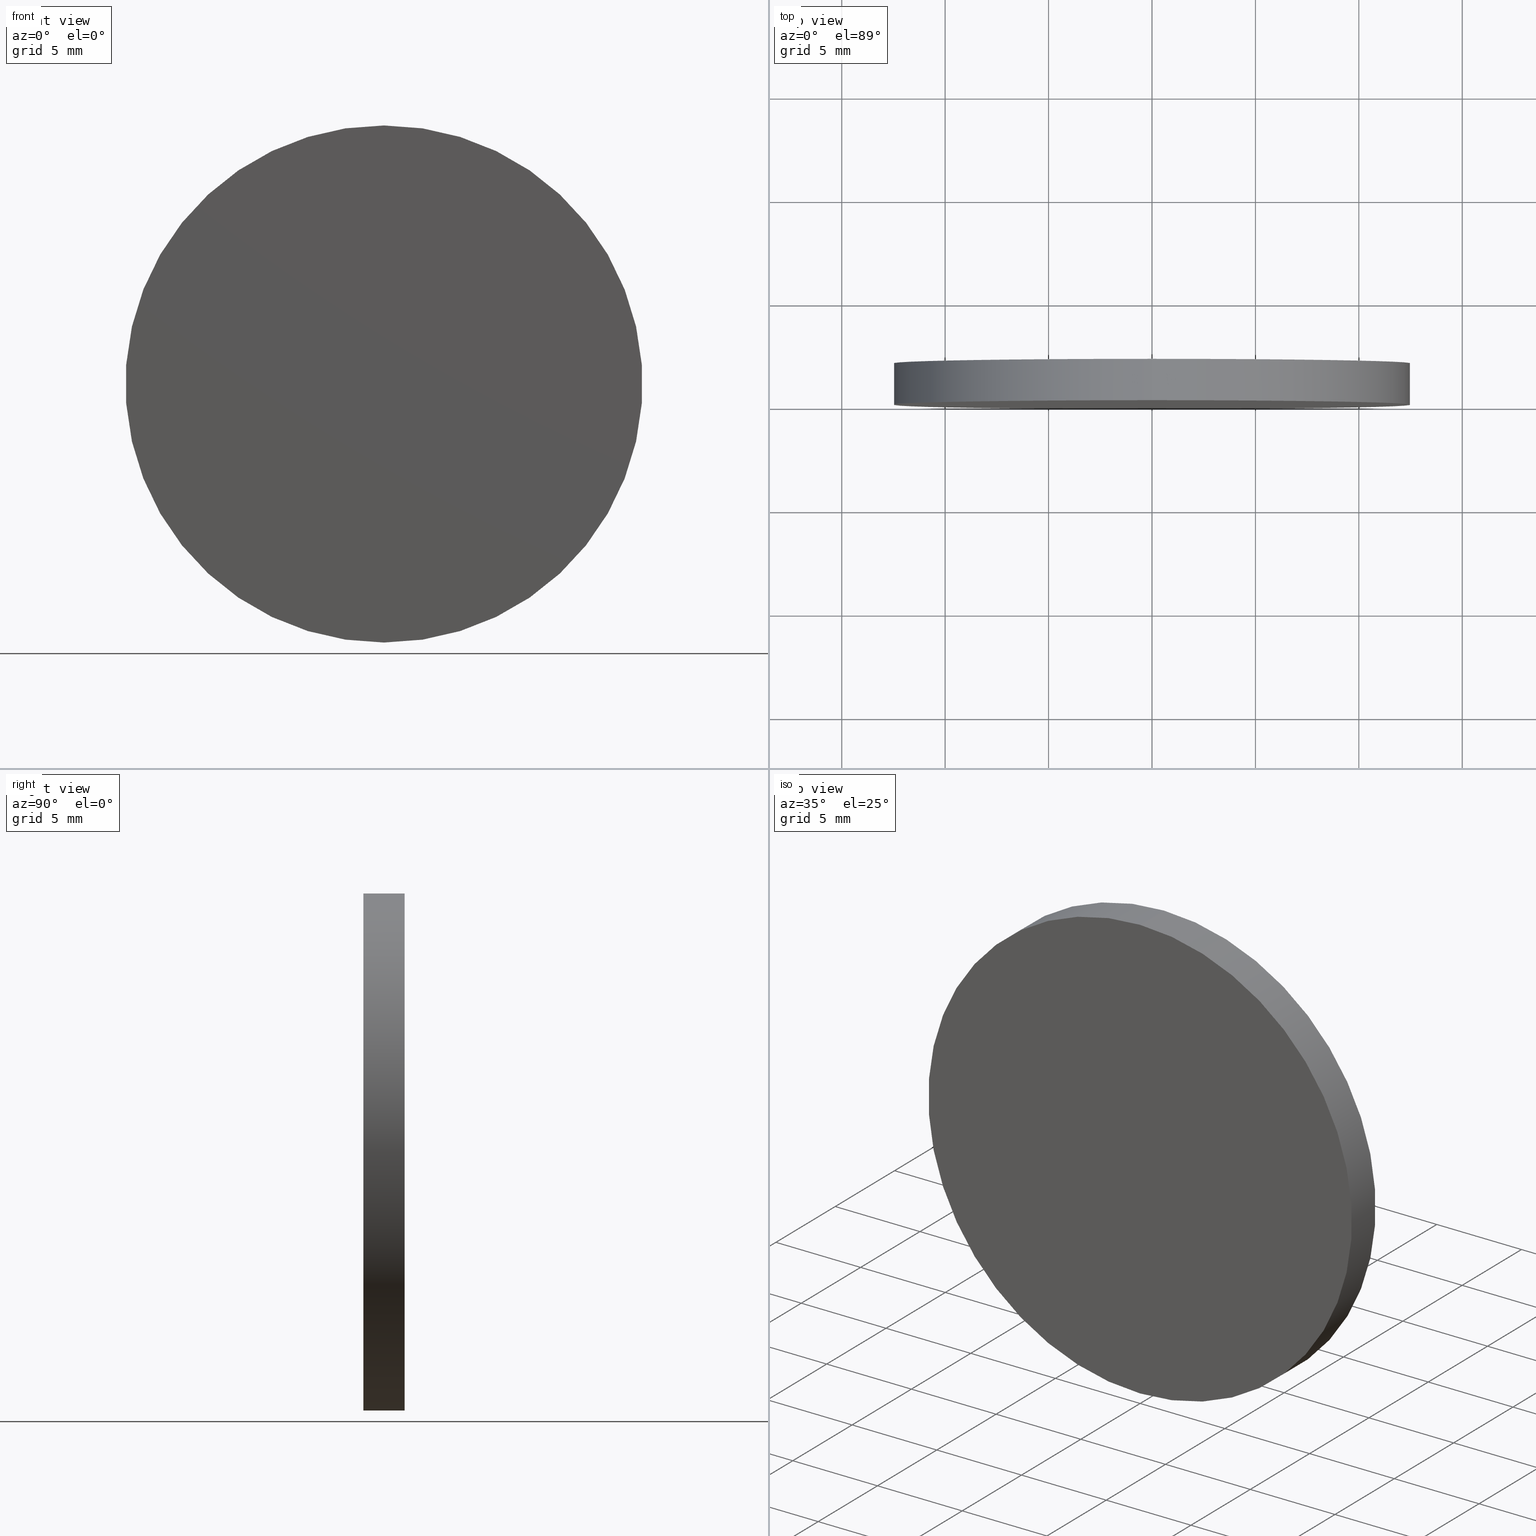
[diagram: canonical four-view strip — front | top / right | iso, engineering-drawing reading convention]
A machine part, canonical four-view strip (front | top / right | iso — engineering-drawing reading convention). The complete STEP part file that produces these views, byte-faithful:
ISO-10303-21;
HEADER;
FILE_DESCRIPTION (( 'STEP AP214' ),
    '1' );
FILE_NAME ('248511.STEP',
    '2019-08-01T06:20:49',
    ( 'user' ),
    ( '΢���й�' ),
    'SwSTEP 2.0',
    'SolidWorks 2016',
    '' );
FILE_SCHEMA (( 'AUTOMOTIVE_DESIGN' ));
ENDSEC;

DATA;
#1 = CARTESIAN_POINT ( 'NONE',  ( 0.0000000000000000000, 0.0000000000000000000, 0.0000000000000000000 ) ) ;
#2 = DIRECTION ( 'NONE',  ( -0.0000000000000000000, -1.000000000000000000, -0.0000000000000000000 ) ) ;
#3 = DIRECTION ( 'NONE',  ( -0.0000000000000000000, -1.000000000000000000, -0.0000000000000000000 ) ) ;
#4 = CARTESIAN_POINT ( 'NONE',  ( 0.0000000000000000000, 0.0000000000000000000, 0.0000000000000000000 ) ) ;
#5 = FACE_OUTER_BOUND ( 'NONE', #105, .T. ) ;
#6 = APPLICATION_CONTEXT ( 'automotive_design' ) ;
#7 = AXIS2_PLACEMENT_3D ( 'NONE', #11, #139, #72 ) ;
#8 = ADVANCED_FACE ( 'NONE', ( #12 ), #99, .T. ) ;
#9 = LINE ( 'NONE', #88, #125 ) ;
#10 =( NAMED_UNIT ( * ) SI_UNIT ( $, .STERADIAN. ) SOLID_ANGLE_UNIT ( ) );
#11 = CARTESIAN_POINT ( 'NONE',  ( 0.0000000000000000000, 0.0000000000000000000, 0.0000000000000000000 ) ) ;
#12 = FACE_OUTER_BOUND ( 'NONE', #85, .T. ) ;
#13 = DIRECTION ( 'NONE',  ( 0.0000000000000000000, 1.000000000000000000, 0.0000000000000000000 ) ) ;
#14 = SHAPE_DEFINITION_REPRESENTATION ( #55, #42 ) ;
#15 = PRODUCT_DEFINITION ( 'δ֪', '', #20, #98 ) ;
#16 = CARTESIAN_POINT ( 'NONE',  ( 0.0000000000000000000, 2.000000000000000000, 0.0000000000000000000 ) ) ;
#17 = UNCERTAINTY_MEASURE_WITH_UNIT (LENGTH_MEASURE( 1.000000000000000100E-005 ), #24, 'distance_accuracy_value', 'NONE');
#18 = VERTEX_POINT ( 'NONE', #114 ) ;
#19 = CIRCLE ( 'NONE', #118, 12.50000000000000000 ) ;
#20 = PRODUCT_DEFINITION_FORMATION_WITH_SPECIFIED_SOURCE ( '�κ�', '', #89, .NOT_KNOWN. ) ;
#21 =( LENGTH_UNIT ( ) NAMED_UNIT ( * ) SI_UNIT ( .MILLI., .METRE. ) );
#22 =( NAMED_UNIT ( * ) SI_UNIT ( $, .STERADIAN. ) SOLID_ANGLE_UNIT ( ) );
#23 = EDGE_LOOP ( 'NONE', ( #128, #54, #108, #102 ) ) ;
#24 =( LENGTH_UNIT ( ) NAMED_UNIT ( * ) SI_UNIT ( .MILLI., .METRE. ) );
#25 = PLANE ( 'NONE',  #56 ) ;
#26 = DIRECTION ( 'NONE',  ( 0.0000000000000000000, 0.0000000000000000000, 1.000000000000000000 ) ) ;
#27 = DIRECTION ( 'NONE',  ( -0.0000000000000000000, -1.000000000000000000, -0.0000000000000000000 ) ) ;
#28 = PRODUCT_RELATED_PRODUCT_CATEGORY ( 'part', '', ( #89 ) ) ;
#29 = SURFACE_STYLE_FILL_AREA ( #61 ) ;
#30 = SURFACE_SIDE_STYLE ('',( #84 ) ) ;
#31 =( LENGTH_UNIT ( ) NAMED_UNIT ( * ) SI_UNIT ( .MILLI., .METRE. ) );
#32 = DIRECTION ( 'NONE',  ( 0.0000000000000000000, -0.0000000000000000000, 1.000000000000000000 ) ) ;
#33 = DIRECTION ( 'NONE',  ( 0.0000000000000000000, 0.0000000000000000000, 1.000000000000000000 ) ) ;
#34 = CIRCLE ( 'NONE', #57, 12.50000000000000000 ) ;
#35 = AXIS2_PLACEMENT_3D ( 'NONE', #51, #111, #33 ) ;
#36 = DIRECTION ( 'NONE',  ( 0.0000000000000000000, 1.000000000000000000, 0.0000000000000000000 ) ) ;
#37 = DIRECTION ( 'NONE',  ( 0.0000000000000000000, 0.0000000000000000000, -1.000000000000000000 ) ) ;
#38 = EDGE_CURVE ( 'NONE', #44, #18, #34, .T. ) ;
#39 = CYLINDRICAL_SURFACE ( 'NONE', #46, 12.50000000000000000 ) ;
#40 = ORIENTED_EDGE ( 'NONE', *, *, #47, .F. ) ;
#41 = CIRCLE ( 'NONE', #35, 12.50000000000000000 ) ;
#42 = ADVANCED_BREP_SHAPE_REPRESENTATION ( '248511', ( #137, #7 ), #43 ) ;
#43 =( GEOMETRIC_REPRESENTATION_CONTEXT ( 3 ) GLOBAL_UNCERTAINTY_ASSIGNED_CONTEXT ( ( #17 ) ) GLOBAL_UNIT_ASSIGNED_CONTEXT ( ( #24, #86, #140 ) ) REPRESENTATION_CONTEXT ( 'NONE', 'WORKASPACE' ) );
#44 = VERTEX_POINT ( 'NONE', #121 ) ;
#45 = AXIS2_PLACEMENT_3D ( 'NONE', #96, #13, #90 ) ;
#46 = AXIS2_PLACEMENT_3D ( 'NONE', #134, #3, #124 ) ;
#47 = EDGE_CURVE ( 'NONE', #91, #58, #19, .T. ) ;
#48 = FILL_AREA_STYLE_COLOUR ( '', #81 ) ;
#49 = SURFACE_SIDE_STYLE ('',( #29 ) ) ;
#50 = ORIENTED_EDGE ( 'NONE', *, *, #104, .F. ) ;
#51 = CARTESIAN_POINT ( 'NONE',  ( 0.0000000000000000000, 2.000000000000000000, 0.0000000000000000000 ) ) ;
#52 = PLANE ( 'NONE',  #45 ) ;
#53 = APPLICATION_PROTOCOL_DEFINITION ( 'draft international standard', 'automotive_design', 1998, #6 ) ;
#54 = ORIENTED_EDGE ( 'NONE', *, *, #104, .T. ) ;
#55 = PRODUCT_DEFINITION_SHAPE ( 'NONE', 'NONE',  #15 ) ;
#56 = AXIS2_PLACEMENT_3D ( 'NONE', #122, #110, #32 ) ;
#57 = AXIS2_PLACEMENT_3D ( 'NONE', #4, #79, #135 ) ;
#58 = VERTEX_POINT ( 'NONE', #63 ) ;
#59 = PRESENTATION_LAYER_ASSIGNMENT (  '', '', ( #78 ) ) ;
#60 = ADVANCED_FACE ( 'NONE', ( #69 ), #52, .T. ) ;
#61 = FILL_AREA_STYLE ('',( #77 ) ) ;
#62 = DIRECTION ( 'NONE',  ( -0.0000000000000000000, -1.000000000000000000, -0.0000000000000000000 ) ) ;
#63 = CARTESIAN_POINT ( 'NONE',  ( 1.530808498934191500E-015, 2.000000000000000000, 12.50000000000000000 ) ) ;
#64 = AXIS2_PLACEMENT_3D ( 'NONE', #1, #73, #131 ) ;
#65 = EDGE_CURVE ( 'NONE', #58, #91, #41, .T. ) ;
#66 = PRESENTATION_STYLE_ASSIGNMENT (( #109 ) ) ;
#67 = MECHANICAL_DESIGN_GEOMETRIC_PRESENTATION_REPRESENTATION (  '', ( #78 ), #129 ) ;
#68 = ORIENTED_EDGE ( 'NONE', *, *, #115, .T. ) ;
#69 = FACE_OUTER_BOUND ( 'NONE', #95, .T. ) ;
#70 = ADVANCED_FACE ( 'NONE', ( #123 ), #39, .T. ) ;
#71 = CIRCLE ( 'NONE', #64, 12.50000000000000000 ) ;
#72 = DIRECTION ( 'NONE',  ( 1.000000000000000000, 0.0000000000000000000, 0.0000000000000000000 ) ) ;
#73 = DIRECTION ( 'NONE',  ( 0.0000000000000000000, 1.000000000000000000, 0.0000000000000000000 ) ) ;
#74 = EDGE_CURVE ( 'NONE', #91, #18, #9, .T. ) ;
#75 = CARTESIAN_POINT ( 'NONE',  ( 0.0000000000000000000, 2.000000000000000000, -12.50000000000000000 ) ) ;
#76 = CLOSED_SHELL ( 'NONE', ( #70, #8, #60, #106 ) ) ;
#77 = FILL_AREA_STYLE_COLOUR ( '', #119 ) ;
#78 = STYLED_ITEM ( 'NONE', ( #66 ), #137 ) ;
#79 = DIRECTION ( 'NONE',  ( 0.0000000000000000000, 1.000000000000000000, 0.0000000000000000000 ) ) ;
#80 = UNCERTAINTY_MEASURE_WITH_UNIT (LENGTH_MEASURE( 1.000000000000000100E-005 ), #21, 'distance_accuracy_value', 'NONE');
#81 = COLOUR_RGB ( '',1.000000000000000000, 1.000000000000000000, 1.000000000000000000 ) ;
#82 = AXIS2_PLACEMENT_3D ( 'NONE', #16, #27, #37 ) ;
#83 = UNCERTAINTY_MEASURE_WITH_UNIT (LENGTH_MEASURE( 1.000000000000000100E-005 ), #31, 'distance_accuracy_value', 'NONE');
#84 = SURFACE_STYLE_FILL_AREA ( #107 ) ;
#85 = EDGE_LOOP ( 'NONE', ( #50, #40, #138, #68 ) ) ;
#86 =( NAMED_UNIT ( * ) PLANE_ANGLE_UNIT ( ) SI_UNIT ( $, .RADIAN. ) );
#87 = ORIENTED_EDGE ( 'NONE', *, *, #65, .T. ) ;
#88 = CARTESIAN_POINT ( 'NONE',  ( 0.0000000000000000000, 2.000000000000000000, -12.50000000000000000 ) ) ;
#89 = PRODUCT ( '248511', '248511', '', ( #136 ) ) ;
#90 = DIRECTION ( 'NONE',  ( 0.0000000000000000000, -0.0000000000000000000, 1.000000000000000000 ) ) ;
#91 = VERTEX_POINT ( 'NONE', #75 ) ;
#92 = ORIENTED_EDGE ( 'NONE', *, *, #38, .F. ) ;
#93 = VECTOR ( 'NONE', #62, 1000.000000000000000 ) ;
#94 =( NAMED_UNIT ( * ) PLANE_ANGLE_UNIT ( ) SI_UNIT ( $, .RADIAN. ) );
#95 = EDGE_LOOP ( 'NONE', ( #116, #87 ) ) ;
#96 = CARTESIAN_POINT ( 'NONE',  ( 0.0000000000000000000, 2.000000000000000000, 0.0000000000000000000 ) ) ;
#97 = LINE ( 'NONE', #133, #93 ) ;
#98 = PRODUCT_DEFINITION_CONTEXT ( 'detailed design', #6, 'design' ) ;
#99 = CYLINDRICAL_SURFACE ( 'NONE', #82, 12.50000000000000000 ) ;
#100 = SURFACE_STYLE_USAGE ( .BOTH. , #30 ) ;
#101 =( NAMED_UNIT ( * ) PLANE_ANGLE_UNIT ( ) SI_UNIT ( $, .RADIAN. ) );
#102 = ORIENTED_EDGE ( 'NONE', *, *, #74, .F. ) ;
#103 = STYLED_ITEM ( 'NONE', ( #126 ), #42 ) ;
#104 = EDGE_CURVE ( 'NONE', #58, #44, #97, .T. ) ;
#105 = EDGE_LOOP ( 'NONE', ( #132, #92 ) ) ;
#106 = ADVANCED_FACE ( 'NONE', ( #5 ), #25, .F. ) ;
#107 = FILL_AREA_STYLE ('',( #48 ) ) ;
#108 = ORIENTED_EDGE ( 'NONE', *, *, #38, .T. ) ;
#109 = SURFACE_STYLE_USAGE ( .BOTH. , #49 ) ;
#110 = DIRECTION ( 'NONE',  ( 0.0000000000000000000, 1.000000000000000000, 0.0000000000000000000 ) ) ;
#111 = DIRECTION ( 'NONE',  ( 0.0000000000000000000, 1.000000000000000000, 0.0000000000000000000 ) ) ;
#112 = CARTESIAN_POINT ( 'NONE',  ( 0.0000000000000000000, 2.000000000000000000, 0.0000000000000000000 ) ) ;
#113 = PRESENTATION_LAYER_ASSIGNMENT (  '', '', ( #103 ) ) ;
#114 = CARTESIAN_POINT ( 'NONE',  ( 0.0000000000000000000, 0.0000000000000000000, -12.50000000000000000 ) ) ;
#115 = EDGE_CURVE ( 'NONE', #18, #44, #71, .T. ) ;
#116 = ORIENTED_EDGE ( 'NONE', *, *, #47, .T. ) ;
#117 = MECHANICAL_DESIGN_GEOMETRIC_PRESENTATION_REPRESENTATION (  '', ( #103 ), #127 ) ;
#118 = AXIS2_PLACEMENT_3D ( 'NONE', #112, #36, #26 ) ;
#119 = COLOUR_RGB ( '',1.000000000000000000, 1.000000000000000000, 1.000000000000000000 ) ;
#120 = APPLICATION_CONTEXT ( 'automotive_design' ) ;
#121 = CARTESIAN_POINT ( 'NONE',  ( 1.530808498934191500E-015, 0.0000000000000000000, 12.50000000000000000 ) ) ;
#122 = CARTESIAN_POINT ( 'NONE',  ( 0.0000000000000000000, 0.0000000000000000000, 0.0000000000000000000 ) ) ;
#123 = FACE_OUTER_BOUND ( 'NONE', #23, .T. ) ;
#124 = DIRECTION ( 'NONE',  ( 0.0000000000000000000, 0.0000000000000000000, -1.000000000000000000 ) ) ;
#125 = VECTOR ( 'NONE', #2, 1000.000000000000000 ) ;
#126 = PRESENTATION_STYLE_ASSIGNMENT (( #100 ) ) ;
#127 =( GEOMETRIC_REPRESENTATION_CONTEXT ( 3 ) GLOBAL_UNCERTAINTY_ASSIGNED_CONTEXT ( ( #80 ) ) GLOBAL_UNIT_ASSIGNED_CONTEXT ( ( #21, #94, #10 ) ) REPRESENTATION_CONTEXT ( 'NONE', 'WORKASPACE' ) );
#128 = ORIENTED_EDGE ( 'NONE', *, *, #65, .F. ) ;
#129 =( GEOMETRIC_REPRESENTATION_CONTEXT ( 3 ) GLOBAL_UNCERTAINTY_ASSIGNED_CONTEXT ( ( #83 ) ) GLOBAL_UNIT_ASSIGNED_CONTEXT ( ( #31, #101, #22 ) ) REPRESENTATION_CONTEXT ( 'NONE', 'WORKASPACE' ) );
#130 = APPLICATION_PROTOCOL_DEFINITION ( 'draft international standard', 'automotive_design', 1998, #120 ) ;
#131 = DIRECTION ( 'NONE',  ( 0.0000000000000000000, 0.0000000000000000000, 1.000000000000000000 ) ) ;
#132 = ORIENTED_EDGE ( 'NONE', *, *, #115, .F. ) ;
#133 = CARTESIAN_POINT ( 'NONE',  ( 1.530808498934191500E-015, 2.000000000000000000, 12.50000000000000000 ) ) ;
#134 = CARTESIAN_POINT ( 'NONE',  ( 0.0000000000000000000, 2.000000000000000000, 0.0000000000000000000 ) ) ;
#135 = DIRECTION ( 'NONE',  ( 0.0000000000000000000, 0.0000000000000000000, 1.000000000000000000 ) ) ;
#136 = PRODUCT_CONTEXT ( 'NONE', #120, 'mechanical' ) ;
#137 = MANIFOLD_SOLID_BREP ( '͹̨-����1', #76 ) ;
#138 = ORIENTED_EDGE ( 'NONE', *, *, #74, .T. ) ;
#139 = DIRECTION ( 'NONE',  ( 0.0000000000000000000, 0.0000000000000000000, 1.000000000000000000 ) ) ;
#140 =( NAMED_UNIT ( * ) SI_UNIT ( $, .STERADIAN. ) SOLID_ANGLE_UNIT ( ) );
ENDSEC;
END-ISO-10303-21;
